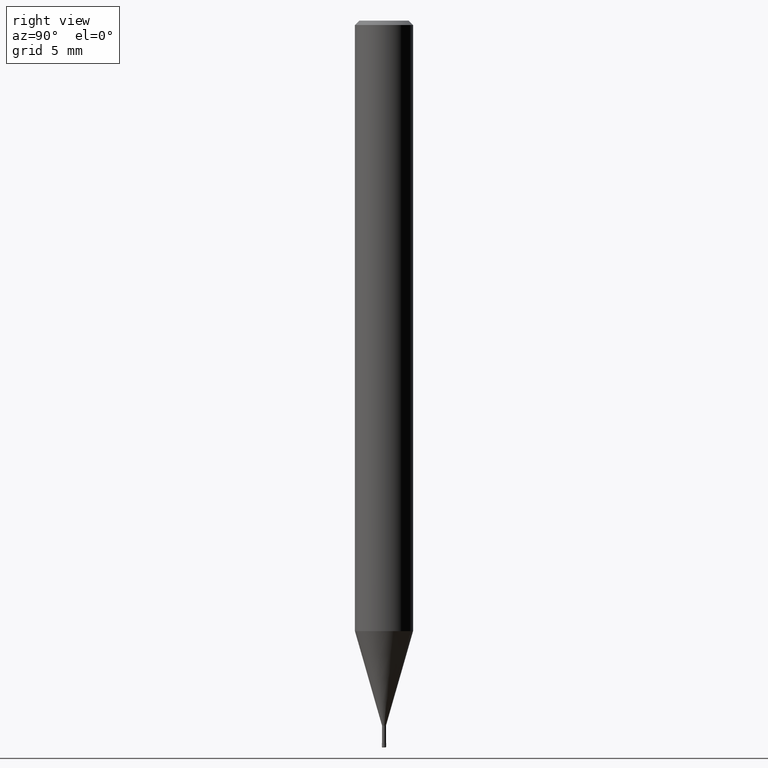
[diagram: clean part render]
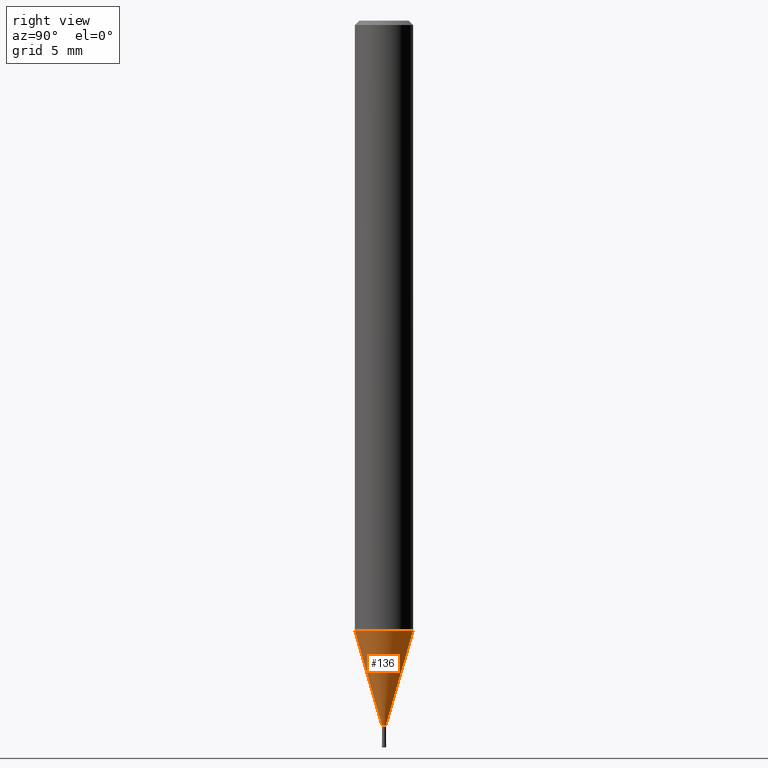
[diagram: same view with one face highlighted and labeled with its STEP entity id]
A machine part, right view. The second image highlights one B-rep face of the part: STEP entity #136.
In plain terms, the highlighted conical surface has half-angle 16 deg.
Its self-contained STEP definition (entity closure, byte-faithful):
#128=VERTEX_POINT('',#287);
#130=EDGE_CURVE('',#128,#198,#289,.T.);
#136=ADVANCED_FACE('',(#295),#296,.T.);
#148=VERTEX_POINT('',#308);
#152=EDGE_CURVE('',#188,#198,#312,.T.);
#156=EDGE_CURVE('',#188,#148,#317,.T.);
#180=EDGE_CURVE('',#148,#128,#346,.T.);
#188=VERTEX_POINT('',#354);
#198=VERTEX_POINT('',#364);
#287=CARTESIAN_POINT('',(1.6526062744833E-017,-0.13495,-48.5));
#289=LINE('',#461,#462);
#295=FACE_OUTER_BOUND('',#471,.T.);
#296=CONICAL_SURFACE('',#472,1.06745,0.279253818445948);
#308=CARTESIAN_POINT('',(0.0,0.13495,-48.5));
#312=CIRCLE('',#493,1.99995);
#317=LINE('',#499,#500);
#346=CIRCLE('',#531,0.13495);
#354=CARTESIAN_POINT('',(0.0,1.99995,-41.996));
#364=CARTESIAN_POINT('',(2.44915147732706E-016,-1.99995,-41.996));
#461=CARTESIAN_POINT('',(1.3072060523877E-016,-1.06745,-45.248));
#462=VECTOR('',#663,1.0);
#471=EDGE_LOOP('',(#669,#670,#671,#672));
#472=AXIS2_PLACEMENT_3D('',#673,#674,#675);
#493=AXIS2_PLACEMENT_3D('',#683,#684,#685);
#499=CARTESIAN_POINT('',(-1.3072060523877E-016,1.06745,-45.248));
#500=VECTOR('',#694,1.0);
#531=AXIS2_PLACEMENT_3D('',#738,#739,#740);
#663=DIRECTION('',(3.3754859704966E-017,-0.275638449854572,0.961261382227419));
#669=ORIENTED_EDGE('',*,*,#156,.F.);
#670=ORIENTED_EDGE('',*,*,#152,.T.);
#671=ORIENTED_EDGE('',*,*,#130,.F.);
#672=ORIENTED_EDGE('',*,*,#180,.F.);
#673=CARTESIAN_POINT('',(0.0,0.0,-45.248));
#674=DIRECTION('',(-0.0,-0.0,1.0));
#675=DIRECTION('',(0.0,1.0,0.0));
#683=CARTESIAN_POINT('',(0.0,0.0,-41.996));
#684=DIRECTION('',(0.0,0.0,-1.0));
#685=DIRECTION('',(0.0,1.0,0.0));
#694=DIRECTION('',(3.3754859704966E-017,-0.275638449854572,-0.961261382227419));
#738=CARTESIAN_POINT('',(0.0,0.0,-48.5));
#739=DIRECTION('',(0.0,0.0,-1.0));
#740=DIRECTION('',(0.0,1.0,0.0));